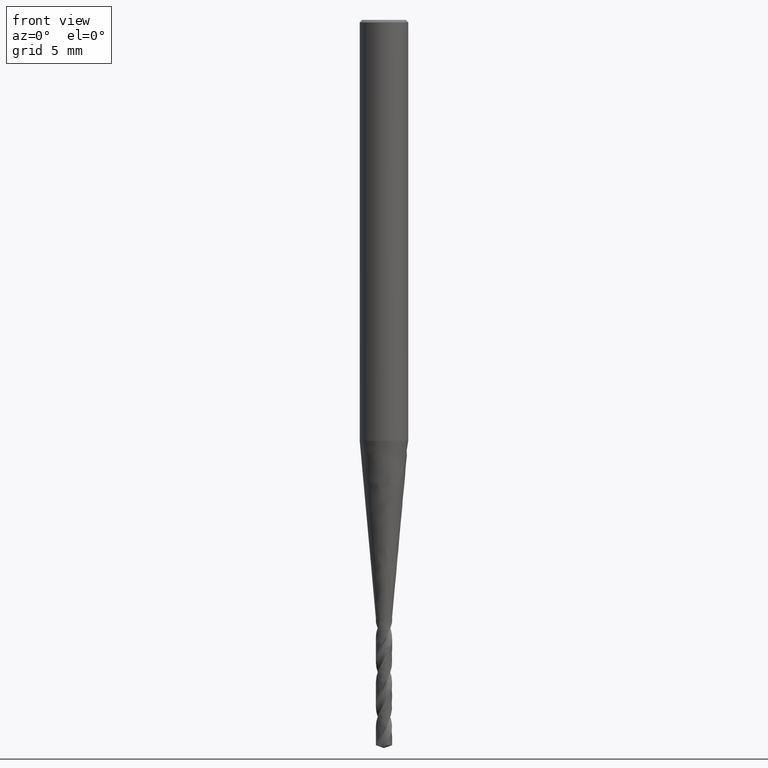
[diagram: clean part render]
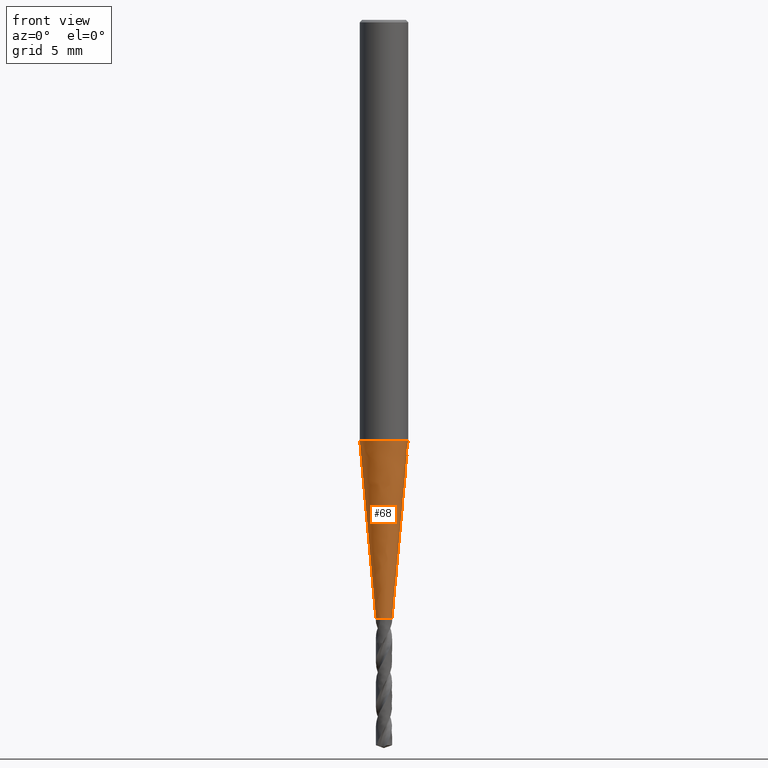
[diagram: same view with one face highlighted and labeled with its STEP entity id]
A machine part, front view. The second image highlights one B-rep face of the part: STEP entity #68.
In plain terms, the highlighted face is a freeform B-spline surface patch.
Its self-contained STEP definition (entity closure, byte-faithful):
#68 = ADVANCED_FACE('', (#69), #190, .T.);
#69 = FACE_OUTER_BOUND('', #70, .T.);
#70 = EDGE_LOOP('', (#71, #88, #97, #105, #112, #113, #122, #137, #145, #160, #169, #184));
#71 = ORIENTED_EDGE('', *, *, #72, .T.);
#72 = EDGE_CURVE('', #73, #75, #77, .T.);
#73 = VERTEX_POINT('', #74);
#74 = CARTESIAN_POINT('', (0.371727661771657, 0.337106604661645, -36.98));
#75 = VERTEX_POINT('', #76);
#76 = CARTESIAN_POINT('', (0.314302472048829, 0.388862387052279, -37.));
#77 = B_SPLINE_CURVE_WITH_KNOTS('', 3, (#78, #79, #80, #81, #82, #83, #84, #85, #86, #87), .UNSPECIFIED., .F., .U., (4, 3, 3, 4), (0., 0.039146282532492, 0.0650107847360916, 0.0808706979996248), .UNSPECIFIED.);
#78 = CARTESIAN_POINT('', (0.371727661725371, 0.337106604712721, -36.98));
#79 = CARTESIAN_POINT('', (0.362960983819317, 0.346771765301559, -36.9800137423313));
#80 = CARTESIAN_POINT('', (0.353634252876449, 0.356099629211161, -36.9813086187047));
#81 = CARTESIAN_POINT('', (0.344213681174646, 0.364618923969251, -36.9842993719884));
#82 = CARTESIAN_POINT('', (0.33798937629108, 0.370247742436517, -36.9862754049574));
#83 = CARTESIAN_POINT('', (0.331667620737967, 0.375577394969288, -36.9890145459208));
#84 = CARTESIAN_POINT('', (0.325491405896511, 0.380437283465292, -36.9925594195369));
#85 = CARTESIAN_POINT('', (0.321704198591636, 0.383417329607697, -36.9947331086974));
#86 = CARTESIAN_POINT('', (0.317952644005739, 0.386237311566026, -36.9972190357565));
#87 = CARTESIAN_POINT('', (0.314302472048823, 0.388862387052284, -37.));
#88 = ORIENTED_EDGE('', *, *, #89, .F.);
#89 = EDGE_CURVE('', #90, #75, #92, .T.);
#90 = VERTEX_POINT('', #91);
#91 = CARTESIAN_POINT('', (-0.5, 2.29621274840129E-15, -37.));
#92 = CIRCLE('', #93, 0.5);
#93 = AXIS2_PLACEMENT_3D('', #94, #95, #96);
#94 = CARTESIAN_POINT('', (1.38727779896222E-31, 2.2655965784226E-15, -37.));
#95 = DIRECTION('', (3.74939945665464E-33, 6.12323399573677E-17, -1.));
#96 = DIRECTION('', (-1., 6.12323399573677E-17, 0.));
#97 = ORIENTED_EDGE('', *, *, #98, .F.);
#98 = EDGE_CURVE('', #99, #90, #101, .T.);
#99 = VERTEX_POINT('', #100);
#100 = CARTESIAN_POINT('', (-1.5, 1.6841955105274E-15, -26.005));
#101 = LINE('', #102, #103);
#102 = CARTESIAN_POINT('', (-1.5, 1.6841955105274E-15, -26.005));
#103 = VECTOR('', #104, 11.0403815604353);
#104 = DIRECTION('', (1., 6.1201723787389E-16, -10.995));
#105 = ORIENTED_EDGE('', *, *, #106, .T.);
#106 = EDGE_CURVE('', #99, #99, #107, .T.);
#107 = CIRCLE('', #108, 1.5);
#108 = AXIS2_PLACEMENT_3D('', #109, #110, #111);
#109 = CARTESIAN_POINT('', (9.7503132870304E-32, 1.59234700059135E-15, -26.005));
#110 = DIRECTION('', (3.74939945665464E-33, 6.12323399573677E-17, -1.));
#111 = DIRECTION('', (-1., 6.12323399573677E-17, 0.));
#112 = ORIENTED_EDGE('', *, *, #98, .T.);
#113 = ORIENTED_EDGE('', *, *, #114, .F.);
#114 = EDGE_CURVE('', #115, #90, #117, .T.);
#115 = VERTEX_POINT('', #116);
#116 = CARTESIAN_POINT('', (-0.4299656988614, -0.255204815398586, -37.));
#117 = CIRCLE('', #118, 0.5);
#118 = AXIS2_PLACEMENT_3D('', #119, #120, #121);
#119 = CARTESIAN_POINT('', (1.38727779896222E-31, 2.2655965784226E-15, -37.));
#120 = DIRECTION('', (3.74939945665464E-33, 6.12323399573677E-17, -1.));
#121 = DIRECTION('', (-1., 6.12323399573677E-17, 0.));
#122 = ORIENTED_EDGE('', *, *, #123, .F.);
#123 = EDGE_CURVE('', #124, #115, #126, .T.);
#124 = VERTEX_POINT('', #125);
#125 = CARTESIAN_POINT('', (-0.372013203634873, -0.336791469241787, -36.98));
#126 = B_SPLINE_CURVE_WITH_KNOTS('', 3, (#127, #128, #129, #130, #131, #132, #133, #134, #135, #136), .UNSPECIFIED., .F., .U., (4, 3, 3, 4), (0., 0.0390845652612272, 0.0778311203312134, 0.102680269216157), .UNSPECIFIED.);
#127 = CARTESIAN_POINT('', (-0.372013203633311, -0.336791469243512, -36.98));
#128 = CARTESIAN_POINT('', (-0.380756030271446, -0.32713245852346, -36.9800137041279));
#129 = CARTESIAN_POINT('', (-0.389060025451854, -0.31702153402453, -36.9812821720523));
#130 = CARTESIAN_POINT('', (-0.396763241094533, -0.306737442622406, -36.9834342934041));
#131 = CARTESIAN_POINT('', (-0.404399837974149, -0.296542289850618, -36.9855678028321));
#132 = CARTESIAN_POINT('', (-0.411507762791066, -0.286101635432227, -36.988583832065));
#133 = CARTESIAN_POINT('', (-0.418047563135217, -0.275578224634385, -36.9922306733092));
#134 = CARTESIAN_POINT('', (-0.422241703030649, -0.268829294278623, -36.9945694851305));
#135 = CARTESIAN_POINT('', (-0.426214497574849, -0.262028145906024, -36.9971751883533));
#136 = CARTESIAN_POINT('', (-0.4299656988614, -0.255204815398587, -37.));
#137 = ORIENTED_EDGE('', *, *, #138, .F.);
#138 = EDGE_CURVE('', #139, #124, #141, .T.);
#139 = VERTEX_POINT('', #140);
#140 = CARTESIAN_POINT('', (-0.371727661771482, -0.337106604661834, -36.98));
#141 = LINE('', #142, #143);
#142 = CARTESIAN_POINT('', (-0.371727661771482, -0.337106604661834, -36.98));
#143 = VECTOR('', #144, 0.000425258143622609);
#144 = DIRECTION('', (-0.000285541863391581, 0.000315135420047019, 0.));
#145 = ORIENTED_EDGE('', *, *, #146, .T.);
#146 = EDGE_CURVE('', #139, #147, #149, .T.);
#147 = VERTEX_POINT('', #148);
#148 = CARTESIAN_POINT('', (-0.31430247204883, -0.388862387052274, -37.));
#149 = B_SPLINE_CURVE_WITH_KNOTS('', 3, (#150, #151, #152, #153, #154, #155, #156, #157, #158, #159), .UNSPECIFIED., .F., .U., (4, 3, 3, 4), (0., 0.0391462825324914, 0.0650107847360907, 0.080870697999517), .UNSPECIFIED.);
#150 = CARTESIAN_POINT('', (-0.371727661725298, -0.337106604712796, -36.98));
#151 = CARTESIAN_POINT('', (-0.362960983819242, -0.346771765301632, -36.9800137423313));
#152 = CARTESIAN_POINT('', (-0.353634252876372, -0.356099629211231, -36.9813086187047));
#153 = CARTESIAN_POINT('', (-0.344213681174568, -0.364618923969316, -36.9842993719884));
#154 = CARTESIAN_POINT('', (-0.337989376291002, -0.37024774243658, -36.9862754049574));
#155 = CARTESIAN_POINT('', (-0.331667620737889, -0.375577394969349, -36.9890145459209));
#156 = CARTESIAN_POINT('', (-0.325491405896434, -0.380437283465349, -36.992559419537));
#157 = CARTESIAN_POINT('', (-0.321704198591585, -0.383417329607732, -36.9947331086975));
#158 = CARTESIAN_POINT('', (-0.317952644005715, -0.386237311566039, -36.9972190357565));
#159 = CARTESIAN_POINT('', (-0.314302472048824, -0.388862387052279, -37.));
#160 = ORIENTED_EDGE('', *, *, #161, .F.);
#161 = EDGE_CURVE('', #162, #147, #164, .T.);
#162 = VERTEX_POINT('', #163);
#163 = CARTESIAN_POINT('', (0.429965698861401, 0.25520481539859, -37.));
#164 = CIRCLE('', #165, 0.5);
#165 = AXIS2_PLACEMENT_3D('', #166, #167, #168);
#166 = CARTESIAN_POINT('', (1.38727779896222E-31, 2.2655965784226E-15, -37.));
#167 = DIRECTION('', (3.74939945665464E-33, 6.12323399573677E-17, -1.));
#168 = DIRECTION('', (-1., 6.12323399573677E-17, 0.));
#169 = ORIENTED_EDGE('', *, *, #170, .F.);
#170 = EDGE_CURVE('', #171, #162, #173, .T.);
#171 = VERTEX_POINT('', #172);
#172 = CARTESIAN_POINT('', (0.372013203634698, 0.336791469241985, -36.98));
#173 = B_SPLINE_CURVE_WITH_KNOTS('', 3, (#174, #175, #176, #177, #178, #179, #180, #181, #182, #183), .UNSPECIFIED., .F., .U., (4, 3, 3, 4), (0., 0.0390845652612292, 0.0778311203312168, 0.10268026921637), .UNSPECIFIED.);
#174 = CARTESIAN_POINT('', (0.372013203633168, 0.336791469243674, -36.98));
#175 = CARTESIAN_POINT('', (0.380756030271308, 0.327132458523626, -36.9800137041279));
#176 = CARTESIAN_POINT('', (0.389060025451723, 0.317021534024698, -36.9812821720522));
#177 = CARTESIAN_POINT('', (0.396763241094409, 0.306737442622577, -36.983434293404));
#178 = CARTESIAN_POINT('', (0.404399837974031, 0.29654228985079, -36.985567802832));
#179 = CARTESIAN_POINT('', (0.411507762790954, 0.286101635432401, -36.988583832065));
#180 = CARTESIAN_POINT('', (0.41804756313511, 0.27557822463456, -36.9922306733091));
#181 = CARTESIAN_POINT('', (0.422241703030582, 0.268829294278742, -36.9945694851305));
#182 = CARTESIAN_POINT('', (0.426214497574818, 0.262028145906085, -36.9971751883533));
#183 = CARTESIAN_POINT('', (0.429965698861401, 0.25520481539859, -37.));
#184 = ORIENTED_EDGE('', *, *, #185, .F.);
#185 = EDGE_CURVE('', #73, #171, #186, .T.);
#186 = LINE('', #187, #188);
#187 = CARTESIAN_POINT('', (0.371727661771657, 0.337106604661645, -36.98));
#188 = VECTOR('', #189, 0.000425258143100355);
#189 = DIRECTION('', (0.000285541863040861, -0.000315135419660051, 0.));
#190 = (
   BOUNDED_SURFACE ()
   B_SPLINE_SURFACE (2, 1, ((#191, #192), (#193, #194), (#195, #196), (#197, #198), (#199, #200), (#201, #202), (#203, #204), (#205, #206), (#207, #208)), .UNSPECIFIED., .T., .F., .U.)
   B_SPLINE_SURFACE_WITH_KNOTS ((3, 2, 2, 2, 3), (2, 2), (0., 0.25, 0.5, 0.75, 1.), (0., 1.), .UNSPECIFIED.)
   GEOMETRIC_REPRESENTATION_ITEM ()
   RATIONAL_B_SPLINE_SURFACE (((1., 1.), (0.707106781186548, 0.707106781186548), (1., 1.), (0.707106781186548, 0.707106781186548), (1., 1.), (0.707106781186548, 0.707106781186548), (1., 1.), (0.707106781186548, 0.707106781186548), (1., 1.)))
   REPRESENTATION_ITEM ('')
   SURFACE ()
);
#191 = CARTESIAN_POINT('', (-1.5, 1.6841955105274E-15, -26.005));
#192 = CARTESIAN_POINT('', (-0.5, 2.29621274840129E-15, -37.));
#193 = CARTESIAN_POINT('', (-1.5, 1.5, -26.005));
#194 = CARTESIAN_POINT('', (-0.5, 0.500000000000002, -37.));
#195 = CARTESIAN_POINT('', (9.86076131526265E-32, 1.5, -26.005));
#196 = CARTESIAN_POINT('', (1.29422492262822E-31, 0.500000000000002, -37.));
#197 = CARTESIAN_POINT('', (1.5, 1.5, -26.005));
#198 = CARTESIAN_POINT('', (0.5, 0.500000000000002, -37.));
#199 = CARTESIAN_POINT('', (1.5, 1.6841955105274E-15, -26.005));
#200 = CARTESIAN_POINT('', (0.5, 2.29621274840129E-15, -37.));
#201 = CARTESIAN_POINT('', (1.5, -1.5, -26.005));
#202 = CARTESIAN_POINT('', (0.5, -0.499999999999998, -37.));
#203 = CARTESIAN_POINT('', (1.83697019872103E-16, -1.5, -26.005));
#204 = CARTESIAN_POINT('', (6.12323399573678E-17, -0.499999999999998, -37.));
#205 = CARTESIAN_POINT('', (-1.5, -1.5, -26.005));
#206 = CARTESIAN_POINT('', (-0.5, -0.499999999999998, -37.));
#207 = CARTESIAN_POINT('', (-1.5, 1.6841955105274E-15, -26.005));
#208 = CARTESIAN_POINT('', (-0.5, 2.29621274840129E-15, -37.));